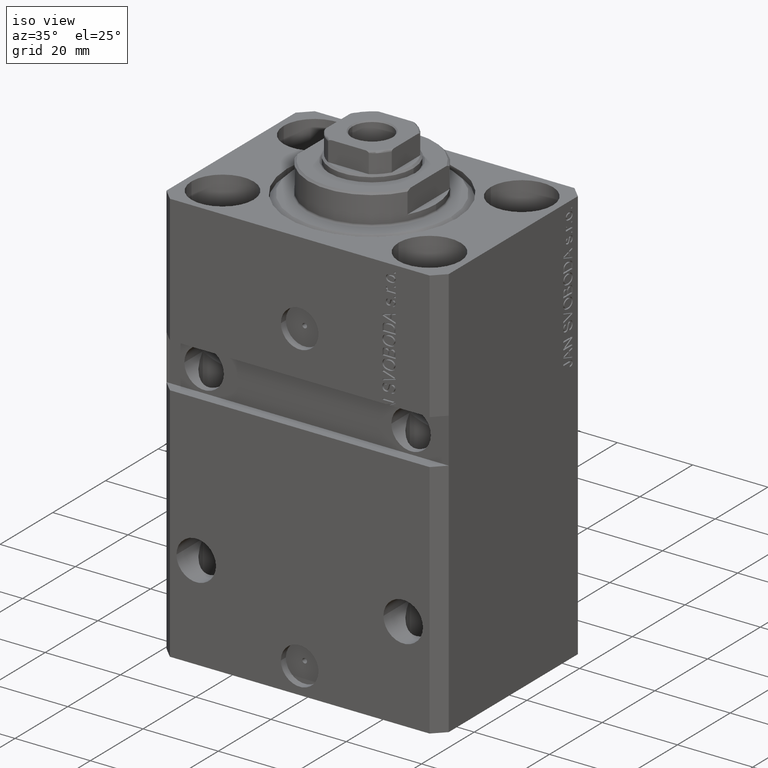
[diagram: clean part render]
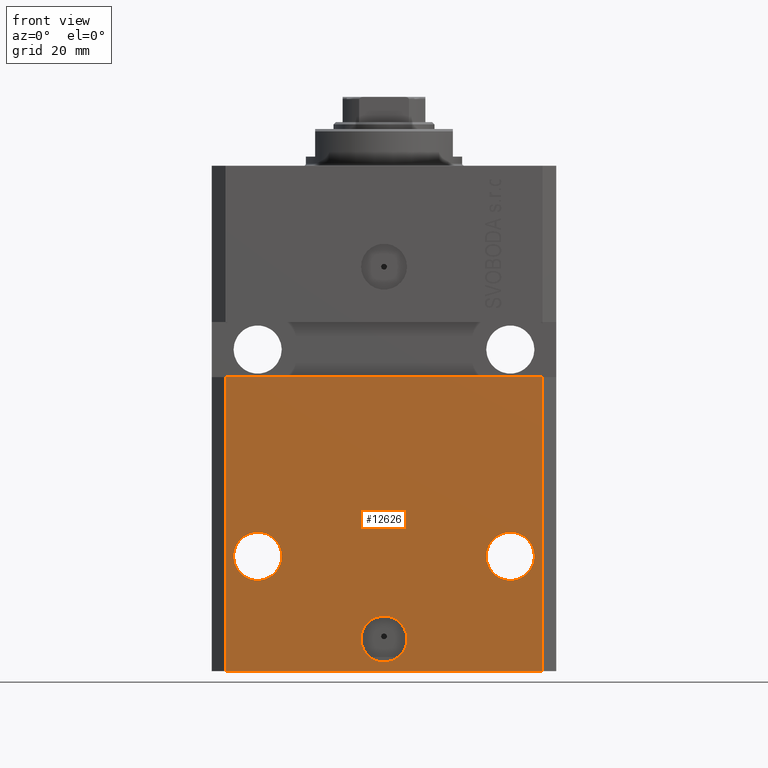
[diagram: tour spotlight — one face highlighted and labeled with its STEP entity id]
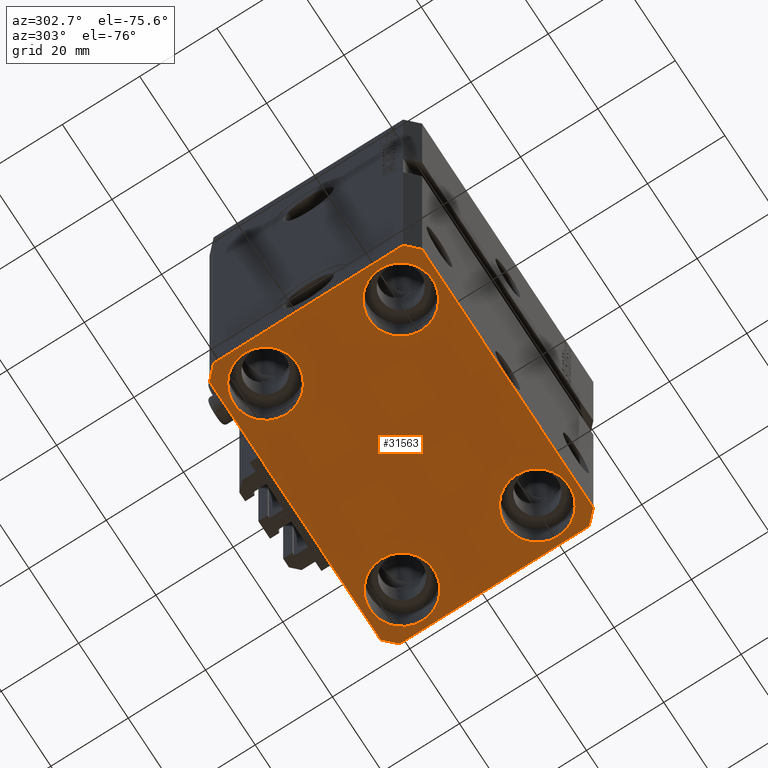
[diagram: tour spotlight — one face highlighted and labeled with its STEP entity id]
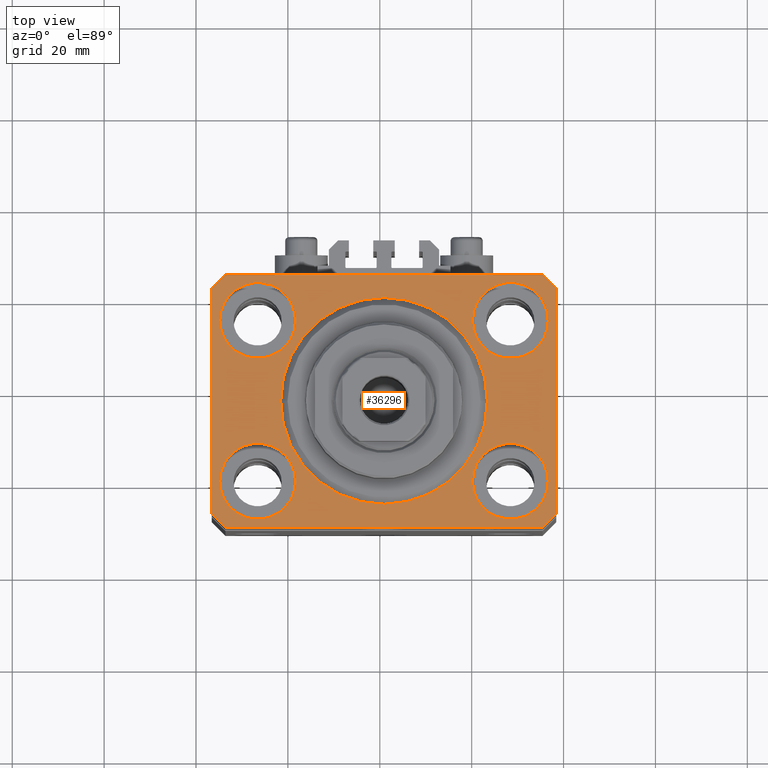
[diagram: tour spotlight — one face highlighted and labeled with its STEP entity id]
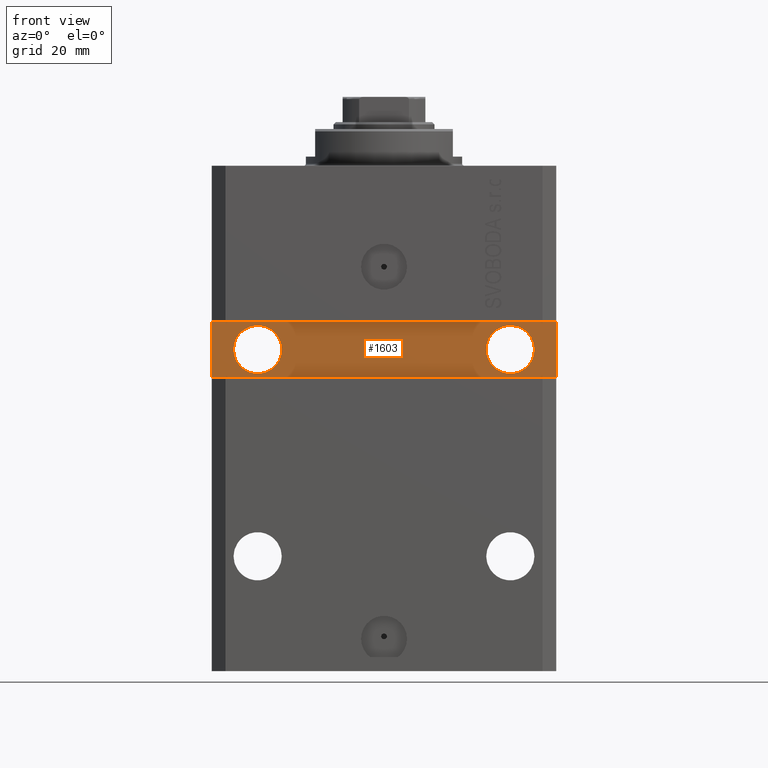
[diagram: tour spotlight — one face highlighted and labeled with its STEP entity id]
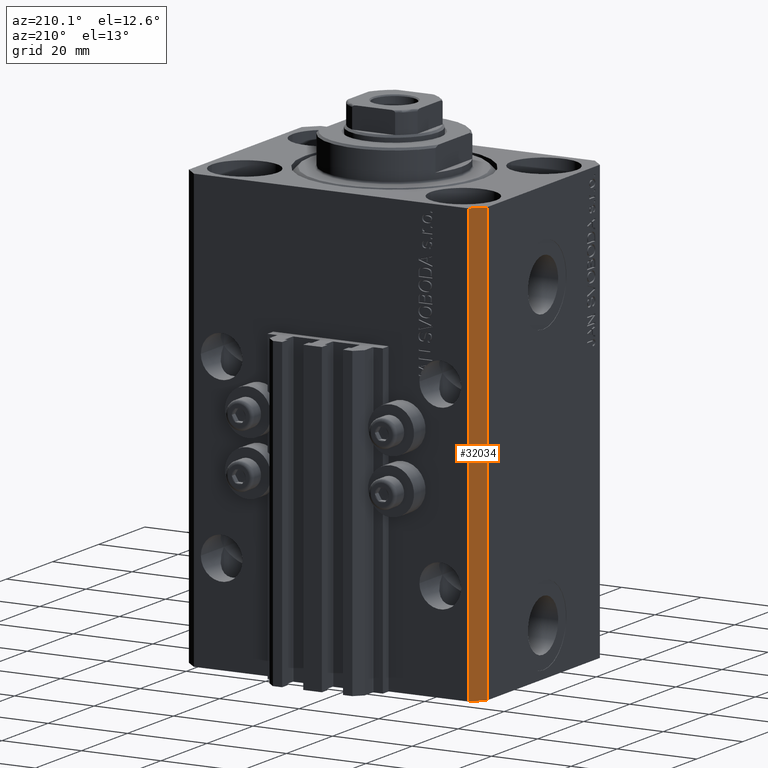
[diagram: tour spotlight — one face highlighted and labeled with its STEP entity id]
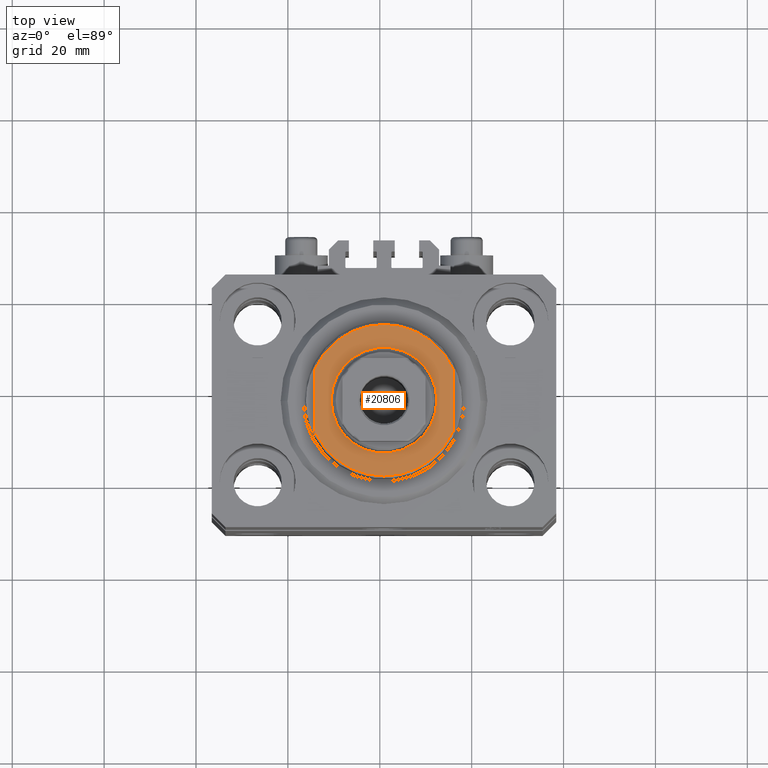
[diagram: tour spotlight — one face highlighted and labeled with its STEP entity id]
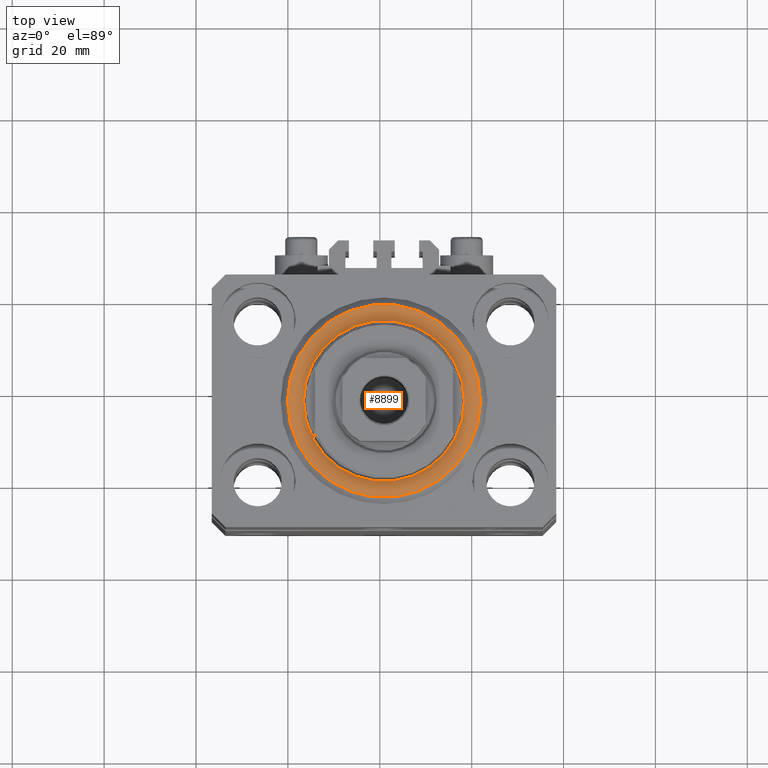
[diagram: tour spotlight — one face highlighted and labeled with its STEP entity id]
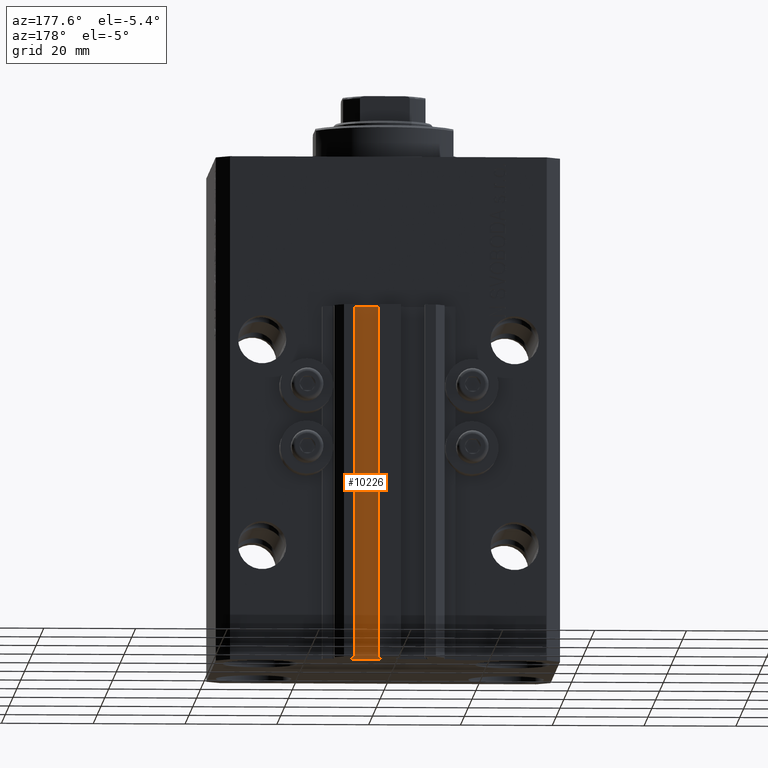
[diagram: tour spotlight — one face highlighted and labeled with its STEP entity id]
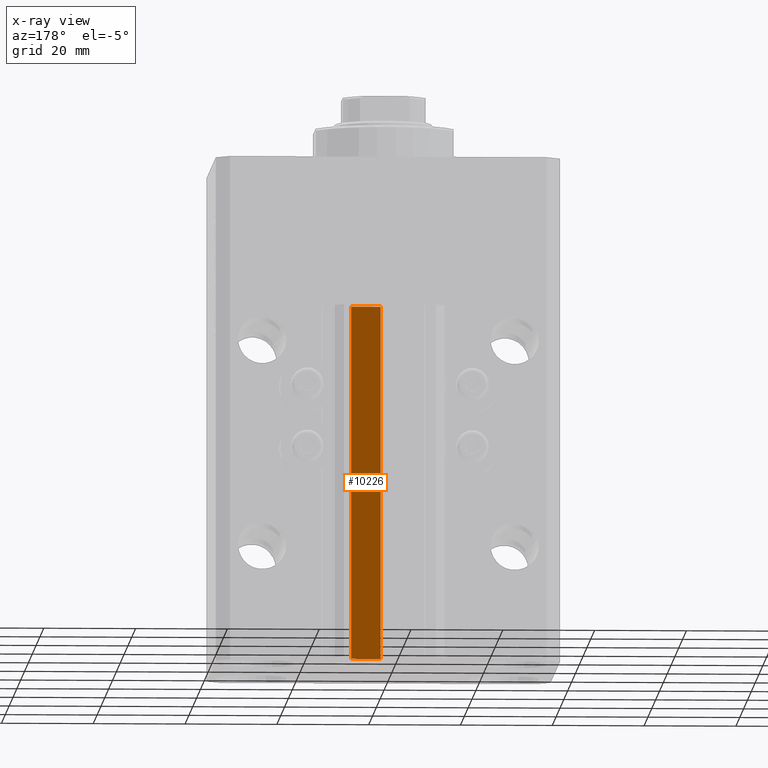
[diagram: x-ray of the same camera — body ghosted, this tour face saturated]
A machine part: a face-by-face anatomy tour. The part has 1084 B-rep faces; the first image is the clean iso view, then the 8 largest visible faces are spotlighted one at a time (largest first), each with its STEP entity span.

Face 1 — front view, entity #12626. In plain terms, the highlighted planar face has unit normal (0, -1, 0).
Definition (entity closure, byte-faithful):
#158 = VECTOR ( 'NONE', #4694, 1000.000000000000000 ) ;
#382 = DIRECTION ( 'NONE',  ( 0.000000000000000000, -0.000000000000000000, -1.000000000000000000 ) ) ;
#501 = ORIENTED_EDGE ( 'NONE', *, *, #44162, .F. ) ;
#529 = DIRECTION ( 'NONE',  ( 1.000000000000000000, 0.000000000000000000, 0.000000000000000000 ) ) ;
#603 = VERTEX_POINT ( 'NONE', #27097 ) ;
#1335 = DIRECTION ( 'NONE',  ( 1.000000000000000000, 0.000000000000000000, 0.000000000000000000 ) ) ;
#2938 = DIRECTION ( 'NONE',  ( 0.000000000000000000, 0.000000000000000000, 1.000000000000000000 ) ) ;
#3987 = LINE ( 'NONE', #22868, #158 ) ;
#4245 = ORIENTED_EDGE ( 'NONE', *, *, #21327, .F. ) ;
#4460 = EDGE_CURVE ( 'NONE', #14613, #32054, #47062, .T. ) ;
#4694 = DIRECTION ( 'NONE',  ( 1.000000000000000000, 9.251858538542972814E-17, -9.251858538542972814E-17 ) ) ;
#5792 = DIRECTION ( 'NONE',  ( 1.000000000000000000, 0.000000000000000000, 0.000000000000000000 ) ) ;
#5992 = DIRECTION ( 'NONE',  ( -1.000000000000000000, 0.000000000000000000, 0.000000000000000000 ) ) ;
#6988 = ORIENTED_EDGE ( 'NONE', *, *, #24050, .F. ) ;
#7158 = AXIS2_PLACEMENT_3D ( 'NONE', #36871, #36419, #7705 ) ;
#7705 = DIRECTION ( 'NONE',  ( 1.000000000000000000, 0.000000000000000000, 0.000000000000000000 ) ) ;
#8000 = CARTESIAN_POINT ( 'NONE',  ( -34.49999999999998579, -27.49999999999999645, -110.0000000000000000 ) ) ;
#9981 = LINE ( 'NONE', #43003, #34459 ) ;
#10138 = EDGE_CURVE ( 'NONE', #40624, #37892, #19222, .T. ) ;
#10198 = CARTESIAN_POINT ( 'NONE',  ( 22.25000000000002132, -27.49999999999999289, -84.99999999999998579 ) ) ;
#10224 = DIRECTION ( 'NONE',  ( 0.000000000000000000, 0.000000000000000000, 1.000000000000000000 ) ) ;
#10464 = EDGE_LOOP ( 'NONE', ( #501, #13793 ) ) ;
#11372 = AXIS2_PLACEMENT_3D ( 'NONE', #46433, #28930, #5992 ) ;
#11643 = FACE_BOUND ( 'NONE', #10464, .T. ) ;
#12415 = CIRCLE ( 'NONE', #42985, 5.000000000000006217 ) ;
#12523 = CIRCLE ( 'NONE', #7158, 5.249999999999994671 ) ;
#12626 = ADVANCED_FACE ( 'NONE', ( #37227, #11643, #41065, #19278 ), #33165, .T. ) ;
#12787 = CARTESIAN_POINT ( 'NONE',  ( -27.50000000000001421, -27.50000000000000000, -84.99999999999998579 ) ) ;
#13386 = EDGE_CURVE ( 'NONE', #18785, #46538, #35061, .T. ) ;
#13793 = ORIENTED_EDGE ( 'NONE', *, *, #31123, .F. ) ;
#14007 = ORIENTED_EDGE ( 'NONE', *, *, #24161, .T. ) ;
#14613 = VERTEX_POINT ( 'NONE', #26722 ) ;
#14943 = DIRECTION ( 'NONE',  ( 1.000000000000000000, 0.000000000000000000, 0.000000000000000000 ) ) ;
#18039 = DIRECTION ( 'NONE',  ( 1.176083712526788232E-16, -1.000000000000000000, 0.000000000000000000 ) ) ;
#18785 = VERTEX_POINT ( 'NONE', #34641 ) ;
#19045 = CARTESIAN_POINT ( 'NONE',  ( -34.49999999999998579, -27.49999999999999645, -110.0000000000000000 ) ) ;
#19222 = LINE ( 'NONE', #8000, #28081 ) ;
#19278 = FACE_OUTER_BOUND ( 'NONE', #39806, .T. ) ;
#20776 = AXIS2_PLACEMENT_3D ( 'NONE', #12787, #41978, #41503 ) ;
#21327 = EDGE_CURVE ( 'NONE', #40624, #30390, #9981, .T. ) ;
#21536 = CARTESIAN_POINT ( 'NONE',  ( -5.000000000000006217, -27.49999999999999645, -103.0000000000000000 ) ) ;
#22104 = ORIENTED_EDGE ( 'NONE', *, *, #4460, .F. ) ;
#22259 = ORIENTED_EDGE ( 'NONE', *, *, #42165, .F. ) ;
#22859 = DIRECTION ( 'NONE',  ( 0.000000000000000000, -1.000000000000000000, 0.000000000000000000 ) ) ;
#22868 = CARTESIAN_POINT ( 'NONE',  ( -37.50000000000000000, -27.50000000000000000, -46.00000000000000000 ) ) ;
#23150 = AXIS2_PLACEMENT_3D ( 'NONE', #43409, #18039, #529 ) ;
#23776 = VERTEX_POINT ( 'NONE', #10198 ) ;
#24050 = EDGE_CURVE ( 'NONE', #46538, #18785, #44445, .T. ) ;
#24161 = EDGE_CURVE ( 'NONE', #37892, #29768, #35245, .T. ) ;
#24750 = CARTESIAN_POINT ( 'NONE',  ( -22.25000000000002132, -27.50000000000000000, -84.99999999999998579 ) ) ;
#25748 = CARTESIAN_POINT ( 'NONE',  ( -34.49999999999998579, -27.50000000000000000, -46.00000000000000000 ) ) ;
#26722 = CARTESIAN_POINT ( 'NONE',  ( 5.000000000000006217, -27.49999999999999645, -103.0000000000000000 ) ) ;
#27097 = CARTESIAN_POINT ( 'NONE',  ( 32.75000000000000711, -27.49999999999999289, -84.99999999999998579 ) ) ;
#27973 = CARTESIAN_POINT ( 'NONE',  ( 34.49999999999999289, -27.49999999999999645, -110.0000000000000000 ) ) ;
#28081 = VECTOR ( 'NONE', #14943, 1000.000000000000000 ) ;
#28893 = CARTESIAN_POINT ( 'NONE',  ( -34.49999999999998579, -27.49999999999999645, -110.0000000000000000 ) ) ;
#28930 = DIRECTION ( 'NONE',  ( 1.176083712526788232E-16, -1.000000000000000000, 0.000000000000000000 ) ) ;
#29348 = DIRECTION ( 'NONE',  ( 1.176083712526788232E-16, -1.000000000000000000, 0.000000000000000000 ) ) ;
#29768 = VERTEX_POINT ( 'NONE', #38848 ) ;
#30390 = VERTEX_POINT ( 'NONE', #25748 ) ;
#31123 = EDGE_CURVE ( 'NONE', #23776, #603, #12523, .T. ) ;
#32054 = VERTEX_POINT ( 'NONE', #21536 ) ;
#33165 = PLANE ( 'NONE',  #33472 ) ;
#33472 = AXIS2_PLACEMENT_3D ( 'NONE', #19045, #22859, #382 ) ;
#34459 = VECTOR ( 'NONE', #10224, 1000.000000000000000 ) ;
#34539 = EDGE_LOOP ( 'NONE', ( #22104, #42292 ) ) ;
#34641 = CARTESIAN_POINT ( 'NONE',  ( -32.75000000000000711, -27.50000000000000000, -84.99999999999998579 ) ) ;
#35061 = CIRCLE ( 'NONE', #11372, 5.249999999999994671 ) ;
#35245 = LINE ( 'NONE', #42682, #46007 ) ;
#35666 = DIRECTION ( 'NONE',  ( 1.176083712526788232E-16, -1.000000000000000000, 0.000000000000000000 ) ) ;
#35855 = ORIENTED_EDGE ( 'NONE', *, *, #10138, .T. ) ;
#36419 = DIRECTION ( 'NONE',  ( 1.176083712526788232E-16, -1.000000000000000000, 0.000000000000000000 ) ) ;
#36871 = CARTESIAN_POINT ( 'NONE',  ( 27.50000000000001421, -27.49999999999999289, -84.99999999999998579 ) ) ;
#37227 = FACE_BOUND ( 'NONE', #34539, .T. ) ;
#37892 = VERTEX_POINT ( 'NONE', #27973 ) ;
#38848 = CARTESIAN_POINT ( 'NONE',  ( 34.49999999999999289, -27.49999999999999289, -46.00000000000000711 ) ) ;
#39012 = EDGE_LOOP ( 'NONE', ( #6988, #41111 ) ) ;
#39806 = EDGE_LOOP ( 'NONE', ( #22259, #4245, #35855, #14007 ) ) ;
#39973 = CIRCLE ( 'NONE', #23150, 5.249999999999994671 ) ;
#40624 = VERTEX_POINT ( 'NONE', #28893 ) ;
#41065 = FACE_BOUND ( 'NONE', #39012, .T. ) ;
#41073 = CARTESIAN_POINT ( 'NONE',  ( 0.000000000000000000, -27.49999999999999645, -103.0000000000000000 ) ) ;
#41111 = ORIENTED_EDGE ( 'NONE', *, *, #13386, .F. ) ;
#41503 = DIRECTION ( 'NONE',  ( -1.000000000000000000, 0.000000000000000000, 0.000000000000000000 ) ) ;
#41978 = DIRECTION ( 'NONE',  ( 1.176083712526788232E-16, -1.000000000000000000, 0.000000000000000000 ) ) ;
#42165 = EDGE_CURVE ( 'NONE', #30390, #29768, #3987, .T. ) ;
#42173 = CARTESIAN_POINT ( 'NONE',  ( 0.000000000000000000, -27.49999999999999645, -103.0000000000000000 ) ) ;
#42214 = EDGE_CURVE ( 'NONE', #32054, #14613, #12415, .T. ) ;
#42292 = ORIENTED_EDGE ( 'NONE', *, *, #42214, .F. ) ;
#42682 = CARTESIAN_POINT ( 'NONE',  ( 34.49999999999999289, -27.49999999999999645, -110.0000000000000000 ) ) ;
#42985 = AXIS2_PLACEMENT_3D ( 'NONE', #41073, #29348, #1335 ) ;
#43003 = CARTESIAN_POINT ( 'NONE',  ( -34.49999999999998579, -27.49999999999999645, -110.0000000000000000 ) ) ;
#43228 = AXIS2_PLACEMENT_3D ( 'NONE', #42173, #35666, #5792 ) ;
#43409 = CARTESIAN_POINT ( 'NONE',  ( 27.50000000000001421, -27.49999999999999289, -84.99999999999998579 ) ) ;
#44162 = EDGE_CURVE ( 'NONE', #603, #23776, #39973, .T. ) ;
#44445 = CIRCLE ( 'NONE', #20776, 5.249999999999994671 ) ;
#46007 = VECTOR ( 'NONE', #2938, 1000.000000000000000 ) ;
#46433 = CARTESIAN_POINT ( 'NONE',  ( -27.50000000000001421, -27.50000000000000000, -84.99999999999998579 ) ) ;
#46538 = VERTEX_POINT ( 'NONE', #24750 ) ;
#47062 = CIRCLE ( 'NONE', #43228, 5.000000000000006217 ) ;

Face 2 — auxiliary view, entity #31563. In plain terms, the highlighted planar face has unit normal (0, 0, 1).
Definition (entity closure, byte-faithful):
#70 = ORIENTED_EDGE ( 'NONE', *, *, #6767, .T. ) ;
#369 = VERTEX_POINT ( 'NONE', #30985 ) ;
#1162 = EDGE_CURVE ( 'NONE', #37358, #37851, #17820, .T. ) ;
#1176 = ORIENTED_EDGE ( 'NONE', *, *, #6708, .T. ) ;
#1227 = DIRECTION ( 'NONE',  ( 1.000000000000000000, 0.000000000000000000, 0.000000000000000000 ) ) ;
#1846 = VECTOR ( 'NONE', #10663, 1000.000000000000114 ) ;
#2437 = VERTEX_POINT ( 'NONE', #39682 ) ;
#2860 = DIRECTION ( 'NONE',  ( 0.000000000000000000, -1.000000000000000000, 0.000000000000000000 ) ) ;
#3123 = VECTOR ( 'NONE', #27321, 1000.000000000000000 ) ;
#3394 = AXIS2_PLACEMENT_3D ( 'NONE', #12017, #34000, #1227 ) ;
#3550 = EDGE_CURVE ( 'NONE', #2437, #9977, #22010, .T. ) ;
#4855 = EDGE_CURVE ( 'NONE', #26059, #20656, #17966, .T. ) ;
#5445 = CARTESIAN_POINT ( 'NONE',  ( 37.49999999999999289, -24.50000000000000000, -110.0000000000000000 ) ) ;
#5661 = DIRECTION ( 'NONE',  ( 1.000000000000000000, 0.000000000000000000, -0.000000000000000000 ) ) ;
#5975 = EDGE_CURVE ( 'NONE', #37851, #2437, #41804, .T. ) ;
#6501 = CARTESIAN_POINT ( 'NONE',  ( 35.74999999999999289, 17.50000000000001066, -110.0000000000000000 ) ) ;
#6606 = CIRCLE ( 'NONE', #42516, 8.250000000000000000 ) ;
#6708 = EDGE_CURVE ( 'NONE', #20656, #26059, #29478, .T. ) ;
#6767 = EDGE_CURVE ( 'NONE', #23388, #17220, #6606, .T. ) ;
#7219 = AXIS2_PLACEMENT_3D ( 'NONE', #25625, #7928, #32807 ) ;
#7763 = ORIENTED_EDGE ( 'NONE', *, *, #19316, .T. ) ;
#7923 = EDGE_CURVE ( 'NONE', #18420, #26434, #34102, .T. ) ;
#7928 = DIRECTION ( 'NONE',  ( -0.000000000000000000, -0.000000000000000000, 1.000000000000000000 ) ) ;
#7969 = AXIS2_PLACEMENT_3D ( 'NONE', #24529, #16659, #5661 ) ;
#8000 = CARTESIAN_POINT ( 'NONE',  ( -34.49999999999998579, -27.49999999999999645, -110.0000000000000000 ) ) ;
#8840 = ORIENTED_EDGE ( 'NONE', *, *, #10138, .F. ) ;
#8883 = AXIS2_PLACEMENT_3D ( 'NONE', #15835, #23241, #37847 ) ;
#9688 = CARTESIAN_POINT ( 'NONE',  ( 27.50000000000000355, -17.50000000000000000, -110.0000000000000000 ) ) ;
#9796 = DIRECTION ( 'NONE',  ( -0.000000000000000000, -0.000000000000000000, 1.000000000000000000 ) ) ;
#9954 = FACE_OUTER_BOUND ( 'NONE', #26709, .T. ) ;
#9977 = VERTEX_POINT ( 'NONE', #40886 ) ;
#10138 = EDGE_CURVE ( 'NONE', #40624, #37892, #19222, .T. ) ;
#10663 = DIRECTION ( 'NONE',  ( -0.7071067811865356934, 0.7071067811865594521, 0.000000000000000000 ) ) ;
#10723 = CARTESIAN_POINT ( 'NONE',  ( -27.50000000000000355, 17.50000000000000000, -110.0000000000000000 ) ) ;
#11114 = CARTESIAN_POINT ( 'NONE',  ( 35.75000000000000711, -17.50000000000000000, -110.0000000000000000 ) ) ;
#11331 = VERTEX_POINT ( 'NONE', #5445 ) ;
#11614 = CARTESIAN_POINT ( 'NONE',  ( -27.50000000000000355, 17.50000000000000000, -110.0000000000000000 ) ) ;
#12017 = CARTESIAN_POINT ( 'NONE',  ( -27.50000000000000355, -17.50000000000000000, -110.0000000000000000 ) ) ;
#12271 = ORIENTED_EDGE ( 'NONE', *, *, #7923, .T. ) ;
#12427 = ORIENTED_EDGE ( 'NONE', *, *, #21490, .F. ) ;
#12699 = CARTESIAN_POINT ( 'NONE',  ( 34.50000000000056843, 27.50000000000000000, -110.0000000000000000 ) ) ;
#14542 = CIRCLE ( 'NONE', #24448, 8.250000000000000000 ) ;
#14717 = ORIENTED_EDGE ( 'NONE', *, *, #33072, .T. ) ;
#14943 = DIRECTION ( 'NONE',  ( 1.000000000000000000, 0.000000000000000000, 0.000000000000000000 ) ) ;
#15501 = CIRCLE ( 'NONE', #7219, 8.250000000000000000 ) ;
#15712 = CARTESIAN_POINT ( 'NONE',  ( -19.25000000000000355, -17.50000000000000000, -110.0000000000000000 ) ) ;
#15823 = LINE ( 'NONE', #34220, #21674 ) ;
#15835 = CARTESIAN_POINT ( 'NONE',  ( 27.49999999999999645, 17.50000000000001066, -110.0000000000000000 ) ) ;
#16054 = DIRECTION ( 'NONE',  ( 0.7071067811865474617, 0.7071067811865474617, 0.000000000000000000 ) ) ;
#16659 = DIRECTION ( 'NONE',  ( 0.000000000000000000, 0.000000000000000000, 1.000000000000000000 ) ) ;
#16736 = DIRECTION ( 'NONE',  ( 1.000000000000000000, 0.000000000000000000, 0.000000000000000000 ) ) ;
#16966 = CARTESIAN_POINT ( 'NONE',  ( 37.49999999999999289, -24.50000000000000000, -110.0000000000000000 ) ) ;
#17149 = VECTOR ( 'NONE', #2860, 1000.000000000000000 ) ;
#17220 = VERTEX_POINT ( 'NONE', #11114 ) ;
#17321 = DIRECTION ( 'NONE',  ( 1.000000000000000000, 0.000000000000000000, 0.000000000000000000 ) ) ;
#17820 = LINE ( 'NONE', #32417, #1846 ) ;
#17966 = CIRCLE ( 'NONE', #46268, 8.249999999999992895 ) ;
#18420 = VERTEX_POINT ( 'NONE', #37823 ) ;
#19222 = LINE ( 'NONE', #8000, #28081 ) ;
#19316 = EDGE_CURVE ( 'NONE', #26434, #18420, #32866, .T. ) ;
#20656 = VERTEX_POINT ( 'NONE', #6501 ) ;
#20993 = ORIENTED_EDGE ( 'NONE', *, *, #46957, .T. ) ;
#20995 = EDGE_CURVE ( 'NONE', #11331, #37358, #42812, .T. ) ;
#21490 = EDGE_CURVE ( 'NONE', #369, #40624, #38109, .T. ) ;
#21674 = VECTOR ( 'NONE', #16054, 1000.000000000000114 ) ;
#21719 = DIRECTION ( 'NONE',  ( -0.000000000000000000, -0.000000000000000000, 1.000000000000000000 ) ) ;
#22010 = LINE ( 'NONE', #46934, #39353 ) ;
#22112 = EDGE_LOOP ( 'NONE', ( #12271, #7763 ) ) ;
#22234 = DIRECTION ( 'NONE',  ( -0.7071067811865471286, -0.7071067811865479058, 0.000000000000000000 ) ) ;
#22604 = DIRECTION ( 'NONE',  ( -0.000000000000000000, -0.000000000000000000, 1.000000000000000000 ) ) ;
#23241 = DIRECTION ( 'NONE',  ( -0.000000000000000000, -0.000000000000000000, 1.000000000000000000 ) ) ;
#23352 = VECTOR ( 'NONE', #34592, 1000.000000000000000 ) ;
#23388 = VERTEX_POINT ( 'NONE', #39259 ) ;
#23978 = CARTESIAN_POINT ( 'NONE',  ( -37.49999999999999289, -24.50000000000000000, -110.0000000000000000 ) ) ;
#24086 = ORIENTED_EDGE ( 'NONE', *, *, #4855, .T. ) ;
#24190 = DIRECTION ( 'NONE',  ( -0.000000000000000000, -0.000000000000000000, 1.000000000000000000 ) ) ;
#24258 = DIRECTION ( 'NONE',  ( -0.000000000000000000, -0.000000000000000000, 1.000000000000000000 ) ) ;
#24448 = AXIS2_PLACEMENT_3D ( 'NONE', #9688, #24258, #17321 ) ;
#24529 = CARTESIAN_POINT ( 'NONE',  ( 0.000000000000000000, 0.000000000000000000, -110.0000000000000000 ) ) ;
#24603 = DIRECTION ( 'NONE',  ( 1.076236605503979380E-14, 1.000000000000000000, 0.000000000000000000 ) ) ;
#25290 = DIRECTION ( 'NONE',  ( 1.000000000000000000, 0.000000000000000000, 0.000000000000000000 ) ) ;
#25625 = CARTESIAN_POINT ( 'NONE',  ( -27.50000000000000355, -17.50000000000000000, -110.0000000000000000 ) ) ;
#26059 = VERTEX_POINT ( 'NONE', #29547 ) ;
#26147 = EDGE_LOOP ( 'NONE', ( #70, #37990 ) ) ;
#26434 = VERTEX_POINT ( 'NONE', #46067 ) ;
#26709 = EDGE_LOOP ( 'NONE', ( #37438, #35423, #43591, #40224, #8840, #12427, #38289, #28979 ) ) ;
#27321 = DIRECTION ( 'NONE',  ( 0.7071067811865483499, -0.7071067811865466846, 0.000000000000000000 ) ) ;
#27725 = CARTESIAN_POINT ( 'NONE',  ( 27.49999999999999645, 17.50000000000001066, -110.0000000000000000 ) ) ;
#27973 = CARTESIAN_POINT ( 'NONE',  ( 34.49999999999999289, -27.49999999999999645, -110.0000000000000000 ) ) ;
#28005 = CARTESIAN_POINT ( 'NONE',  ( 27.50000000000000355, -17.50000000000000000, -110.0000000000000000 ) ) ;
#28081 = VECTOR ( 'NONE', #14943, 1000.000000000000000 ) ;
#28114 = FACE_BOUND ( 'NONE', #45348, .T. ) ;
#28893 = CARTESIAN_POINT ( 'NONE',  ( -34.49999999999998579, -27.49999999999999645, -110.0000000000000000 ) ) ;
#28979 = ORIENTED_EDGE ( 'NONE', *, *, #3550, .F. ) ;
#29081 = VECTOR ( 'NONE', #24603, 1000.000000000000000 ) ;
#29478 = CIRCLE ( 'NONE', #8883, 8.249999999999992895 ) ;
#29547 = CARTESIAN_POINT ( 'NONE',  ( 19.25000000000000000, 17.50000000000001066, -110.0000000000000000 ) ) ;
#29764 = DIRECTION ( 'NONE',  ( 1.000000000000000000, 0.000000000000000000, 0.000000000000000000 ) ) ;
#30425 = VERTEX_POINT ( 'NONE', #15712 ) ;
#30985 = CARTESIAN_POINT ( 'NONE',  ( -37.49999999999999289, -24.50000000000000000, -110.0000000000000000 ) ) ;
#31003 = FACE_BOUND ( 'NONE', #35243, .T. ) ;
#31274 = EDGE_CURVE ( 'NONE', #37892, #11331, #15823, .T. ) ;
#31327 = AXIS2_PLACEMENT_3D ( 'NONE', #11614, #22604, #29764 ) ;
#31563 = ADVANCED_FACE ( 'NONE', ( #31003, #34834, #28114, #42743, #9954 ), #45626, .F. ) ;
#32417 = CARTESIAN_POINT ( 'NONE',  ( 37.50000000000051870, 24.49999999999995381, -110.0000000000000000 ) ) ;
#32807 = DIRECTION ( 'NONE',  ( 1.000000000000000000, 0.000000000000000000, 0.000000000000000000 ) ) ;
#32866 = CIRCLE ( 'NONE', #31327, 8.250000000000000000 ) ;
#33072 = EDGE_CURVE ( 'NONE', #33327, #30425, #40097, .T. ) ;
#33327 = VERTEX_POINT ( 'NONE', #39024 ) ;
#34000 = DIRECTION ( 'NONE',  ( -0.000000000000000000, -0.000000000000000000, 1.000000000000000000 ) ) ;
#34102 = CIRCLE ( 'NONE', #40230, 8.250000000000000000 ) ;
#34220 = CARTESIAN_POINT ( 'NONE',  ( 34.49999999999999289, -27.49999999999999645, -110.0000000000000000 ) ) ;
#34592 = DIRECTION ( 'NONE',  ( -1.000000000000000000, 0.000000000000000000, 0.000000000000000000 ) ) ;
#34834 = FACE_BOUND ( 'NONE', #26147, .T. ) ;
#35243 = EDGE_LOOP ( 'NONE', ( #14717, #20993 ) ) ;
#35423 = ORIENTED_EDGE ( 'NONE', *, *, #1162, .F. ) ;
#35426 = DIRECTION ( 'NONE',  ( 1.000000000000000000, 0.000000000000000000, 0.000000000000000000 ) ) ;
#35977 = CARTESIAN_POINT ( 'NONE',  ( 37.50000000000051870, 24.49999999999995381, -110.0000000000000000 ) ) ;
#36431 = EDGE_CURVE ( 'NONE', #17220, #23388, #14542, .T. ) ;
#37358 = VERTEX_POINT ( 'NONE', #35977 ) ;
#37438 = ORIENTED_EDGE ( 'NONE', *, *, #5975, .F. ) ;
#37823 = CARTESIAN_POINT ( 'NONE',  ( -35.75000000000000711, 17.50000000000000000, -110.0000000000000000 ) ) ;
#37847 = DIRECTION ( 'NONE',  ( 1.000000000000000000, 0.000000000000000000, 0.000000000000000000 ) ) ;
#37851 = VERTEX_POINT ( 'NONE', #12699 ) ;
#37892 = VERTEX_POINT ( 'NONE', #27973 ) ;
#37990 = ORIENTED_EDGE ( 'NONE', *, *, #36431, .T. ) ;
#38109 = LINE ( 'NONE', #23978, #3123 ) ;
#38289 = ORIENTED_EDGE ( 'NONE', *, *, #47140, .F. ) ;
#38778 = CARTESIAN_POINT ( 'NONE',  ( -37.49999999999999289, 24.50000000000000000, -110.0000000000000000 ) ) ;
#38917 = CARTESIAN_POINT ( 'NONE',  ( 34.50000000000056843, 27.50000000000000000, -110.0000000000000000 ) ) ;
#39005 = LINE ( 'NONE', #38778, #17149 ) ;
#39024 = CARTESIAN_POINT ( 'NONE',  ( -35.75000000000000711, -17.50000000000000000, -110.0000000000000000 ) ) ;
#39259 = CARTESIAN_POINT ( 'NONE',  ( 19.25000000000000000, -17.50000000000000000, -110.0000000000000000 ) ) ;
#39353 = VECTOR ( 'NONE', #22234, 1000.000000000000000 ) ;
#39682 = CARTESIAN_POINT ( 'NONE',  ( -34.49999999999999289, 27.50000000000000000, -110.0000000000000000 ) ) ;
#40097 = CIRCLE ( 'NONE', #3394, 8.250000000000000000 ) ;
#40224 = ORIENTED_EDGE ( 'NONE', *, *, #31274, .F. ) ;
#40230 = AXIS2_PLACEMENT_3D ( 'NONE', #10723, #21719, #25290 ) ;
#40624 = VERTEX_POINT ( 'NONE', #28893 ) ;
#40886 = CARTESIAN_POINT ( 'NONE',  ( -37.49999999999999289, 24.50000000000000000, -110.0000000000000000 ) ) ;
#41804 = LINE ( 'NONE', #38917, #23352 ) ;
#42516 = AXIS2_PLACEMENT_3D ( 'NONE', #28005, #24190, #35426 ) ;
#42743 = FACE_BOUND ( 'NONE', #22112, .T. ) ;
#42812 = LINE ( 'NONE', #16966, #29081 ) ;
#43591 = ORIENTED_EDGE ( 'NONE', *, *, #20995, .F. ) ;
#45348 = EDGE_LOOP ( 'NONE', ( #24086, #1176 ) ) ;
#45626 = PLANE ( 'NONE',  #7969 ) ;
#46067 = CARTESIAN_POINT ( 'NONE',  ( -19.25000000000000355, 17.50000000000000000, -110.0000000000000000 ) ) ;
#46268 = AXIS2_PLACEMENT_3D ( 'NONE', #27725, #9796, #16736 ) ;
#46934 = CARTESIAN_POINT ( 'NONE',  ( -34.49999999999999289, 27.50000000000000000, -110.0000000000000000 ) ) ;
#46957 = EDGE_CURVE ( 'NONE', #30425, #33327, #15501, .T. ) ;
#47140 = EDGE_CURVE ( 'NONE', #9977, #369, #39005, .T. ) ;

Face 3 — top view, entity #36296. In plain terms, the highlighted planar face has unit normal (0, 0, 1).
Definition (entity closure, byte-faithful):
#28 = CARTESIAN_POINT ( 'NONE',  ( 34.50000000000056843, 27.50000000000000000, 0.000000000000000000 ) ) ;
#126 = FACE_BOUND ( 'NONE', #10870, .T. ) ;
#148 = CARTESIAN_POINT ( 'NONE',  ( -37.49999999999999289, 24.50000000000000000, 0.000000000000000000 ) ) ;
#931 = EDGE_CURVE ( 'NONE', #27735, #17311, #3357, .T. ) ;
#960 = ORIENTED_EDGE ( 'NONE', *, *, #11618, .F. ) ;
#1533 = DIRECTION ( 'NONE',  ( -0.7071067811865356934, 0.7071067811865594521, 0.000000000000000000 ) ) ;
#1693 = DIRECTION ( 'NONE',  ( 1.000000000000000000, 0.000000000000000000, 0.000000000000000000 ) ) ;
#1975 = VERTEX_POINT ( 'NONE', #20489 ) ;
#2302 = VECTOR ( 'NONE', #22545, 1000.000000000000114 ) ;
#2694 = CARTESIAN_POINT ( 'NONE',  ( 22.50000000000000355, 0.000000000000000000, 0.000000000000000000 ) ) ;
#3357 = CIRCLE ( 'NONE', #45401, 8.250000000000000000 ) ;
#3817 = EDGE_CURVE ( 'NONE', #14530, #47329, #14280, .T. ) ;
#3936 = ORIENTED_EDGE ( 'NONE', *, *, #3817, .T. ) ;
#3982 = DIRECTION ( 'NONE',  ( 0.000000000000000000, 0.000000000000000000, 1.000000000000000000 ) ) ;
#5161 = CARTESIAN_POINT ( 'NONE',  ( -37.49999999999999289, 24.50000000000000000, 0.000000000000000000 ) ) ;
#5512 = VECTOR ( 'NONE', #7121, 1000.000000000000000 ) ;
#5982 = VERTEX_POINT ( 'NONE', #37967 ) ;
#6087 = DIRECTION ( 'NONE',  ( 1.000000000000000000, 0.000000000000000000, 0.000000000000000000 ) ) ;
#6424 = ORIENTED_EDGE ( 'NONE', *, *, #32931, .F. ) ;
#6727 = DIRECTION ( 'NONE',  ( 0.7071067811865483499, -0.7071067811865466846, 0.000000000000000000 ) ) ;
#6870 = CARTESIAN_POINT ( 'NONE',  ( -34.49999999999999289, 27.50000000000000000, 0.000000000000000000 ) ) ;
#7121 = DIRECTION ( 'NONE',  ( 0.000000000000000000, -1.000000000000000000, 0.000000000000000000 ) ) ;
#7157 = DIRECTION ( 'NONE',  ( 1.000000000000000000, 0.000000000000000000, 0.000000000000000000 ) ) ;
#7791 = FACE_BOUND ( 'NONE', #22856, .T. ) ;
#8067 = CARTESIAN_POINT ( 'NONE',  ( 19.25000000000000000, 17.50000000000001066, 0.000000000000000000 ) ) ;
#8249 = CARTESIAN_POINT ( 'NONE',  ( 34.50000000000056843, 27.50000000000000000, 0.000000000000000000 ) ) ;
#8485 = LINE ( 'NONE', #8249, #19232 ) ;
#8970 = ORIENTED_EDGE ( 'NONE', *, *, #11744, .F. ) ;
#8978 = VERTEX_POINT ( 'NONE', #18566 ) ;
#9218 = DIRECTION ( 'NONE',  ( 1.000000000000000000, 0.000000000000000000, 0.000000000000000000 ) ) ;
#9295 = VERTEX_POINT ( 'NONE', #38885 ) ;
#9790 = ORIENTED_EDGE ( 'NONE', *, *, #931, .F. ) ;
#9814 = ORIENTED_EDGE ( 'NONE', *, *, #43379, .F. ) ;
#10266 = AXIS2_PLACEMENT_3D ( 'NONE', #24690, #21341, #39067 ) ;
#10283 = VERTEX_POINT ( 'NONE', #2694 ) ;
#10870 = EDGE_LOOP ( 'NONE', ( #960, #9790 ) ) ;
#11166 = DIRECTION ( 'NONE',  ( 0.000000000000000000, 0.000000000000000000, 1.000000000000000000 ) ) ;
#11387 = FACE_BOUND ( 'NONE', #11793, .T. ) ;
#11453 = AXIS2_PLACEMENT_3D ( 'NONE', #43941, #11166, #25723 ) ;
#11618 = EDGE_CURVE ( 'NONE', #17311, #27735, #35740, .T. ) ;
#11744 = EDGE_CURVE ( 'NONE', #46038, #23622, #38866, .T. ) ;
#11793 = EDGE_LOOP ( 'NONE', ( #24976, #25785 ) ) ;
#12454 = ORIENTED_EDGE ( 'NONE', *, *, #23050, .F. ) ;
#12716 = VERTEX_POINT ( 'NONE', #5161 ) ;
#12786 = CARTESIAN_POINT ( 'NONE',  ( 0.000000000000000000, 0.000000000000000000, 0.000000000000000000 ) ) ;
#12938 = EDGE_CURVE ( 'NONE', #1975, #5982, #24361, .T. ) ;
#13349 = DIRECTION ( 'NONE',  ( -0.7071067811865471286, -0.7071067811865479058, 0.000000000000000000 ) ) ;
#13519 = DIRECTION ( 'NONE',  ( 1.000000000000000000, 0.000000000000000000, 0.000000000000000000 ) ) ;
#13522 = CARTESIAN_POINT ( 'NONE',  ( -37.49999999999999289, -24.50000000000000000, 0.000000000000000000 ) ) ;
#13747 = CARTESIAN_POINT ( 'NONE',  ( 27.49999999999999645, 17.50000000000001066, 0.000000000000000000 ) ) ;
#14097 = AXIS2_PLACEMENT_3D ( 'NONE', #18241, #43388, #21595 ) ;
#14280 = LINE ( 'NONE', #25021, #19471 ) ;
#14337 = DIRECTION ( 'NONE',  ( 0.000000000000000000, 0.000000000000000000, 1.000000000000000000 ) ) ;
#14375 = VECTOR ( 'NONE', #13349, 1000.000000000000000 ) ;
#14530 = VERTEX_POINT ( 'NONE', #15969 ) ;
#14649 = EDGE_CURVE ( 'NONE', #8978, #12716, #20510, .T. ) ;
#15969 = CARTESIAN_POINT ( 'NONE',  ( 37.49999999999999289, -24.50000000000000000, 0.000000000000000000 ) ) ;
#16614 = EDGE_CURVE ( 'NONE', #10283, #27509, #27404, .T. ) ;
#16839 = DIRECTION ( 'NONE',  ( 0.000000000000000000, 0.000000000000000000, 1.000000000000000000 ) ) ;
#17005 = DIRECTION ( 'NONE',  ( 0.000000000000000000, 0.000000000000000000, 1.000000000000000000 ) ) ;
#17039 = CARTESIAN_POINT ( 'NONE',  ( 35.75000000000000711, -17.50000000000000000, 0.000000000000000000 ) ) ;
#17311 = VERTEX_POINT ( 'NONE', #17039 ) ;
#17318 = CARTESIAN_POINT ( 'NONE',  ( -27.50000000000000355, -17.50000000000000000, 0.000000000000000000 ) ) ;
#17970 = CARTESIAN_POINT ( 'NONE',  ( -37.49999999999999289, -24.50000000000000000, 0.000000000000000000 ) ) ;
#18090 = EDGE_LOOP ( 'NONE', ( #6424, #37743 ) ) ;
#18241 = CARTESIAN_POINT ( 'NONE',  ( -27.50000000000000355, 17.50000000000000000, 0.000000000000000000 ) ) ;
#18397 = VERTEX_POINT ( 'NONE', #28 ) ;
#18566 = CARTESIAN_POINT ( 'NONE',  ( -34.49999999999999289, 27.50000000000000000, 0.000000000000000000 ) ) ;
#18577 = DIRECTION ( 'NONE',  ( 1.000000000000000000, 0.000000000000000000, 0.000000000000000000 ) ) ;
#19232 = VECTOR ( 'NONE', #41037, 1000.000000000000000 ) ;
#19406 = ORIENTED_EDGE ( 'NONE', *, *, #19820, .T. ) ;
#19437 = EDGE_CURVE ( 'NONE', #47329, #18397, #23311, .T. ) ;
#19471 = VECTOR ( 'NONE', #30832, 1000.000000000000000 ) ;
#19820 = EDGE_CURVE ( 'NONE', #45394, #30139, #46231, .T. ) ;
#20093 = CIRCLE ( 'NONE', #36111, 8.250000000000000000 ) ;
#20489 = CARTESIAN_POINT ( 'NONE',  ( -35.75000000000000711, 17.50000000000000000, 0.000000000000000000 ) ) ;
#20510 = LINE ( 'NONE', #6870, #14375 ) ;
#20739 = ORIENTED_EDGE ( 'NONE', *, *, #19437, .T. ) ;
#21341 = DIRECTION ( 'NONE',  ( 0.000000000000000000, 0.000000000000000000, 1.000000000000000000 ) ) ;
#21498 = CARTESIAN_POINT ( 'NONE',  ( 0.000000000000000000, 0.000000000000000000, 0.000000000000000000 ) ) ;
#21595 = DIRECTION ( 'NONE',  ( 1.000000000000000000, 0.000000000000000000, 0.000000000000000000 ) ) ;
#21988 = ORIENTED_EDGE ( 'NONE', *, *, #24287, .T. ) ;
#22171 = VECTOR ( 'NONE', #1533, 1000.000000000000114 ) ;
#22299 = CARTESIAN_POINT ( 'NONE',  ( 34.49999999999999289, -27.49999999999999645, 0.000000000000000000 ) ) ;
#22545 = DIRECTION ( 'NONE',  ( 0.7071067811865474617, 0.7071067811865474617, 0.000000000000000000 ) ) ;
#22856 = EDGE_LOOP ( 'NONE', ( #30558, #9814 ) ) ;
#23050 = EDGE_CURVE ( 'NONE', #23622, #46038, #26048, .T. ) ;
#23311 = LINE ( 'NONE', #31666, #22171 ) ;
#23622 = VERTEX_POINT ( 'NONE', #8067 ) ;
#23903 = AXIS2_PLACEMENT_3D ( 'NONE', #12786, #16839, #38630 ) ;
#24162 = ORIENTED_EDGE ( 'NONE', *, *, #36541, .T. ) ;
#24179 = CARTESIAN_POINT ( 'NONE',  ( 27.49999999999999645, 17.50000000000001066, 0.000000000000000000 ) ) ;
#24287 = EDGE_CURVE ( 'NONE', #30139, #40018, #27065, .T. ) ;
#24361 = CIRCLE ( 'NONE', #36598, 8.250000000000000000 ) ;
#24690 = CARTESIAN_POINT ( 'NONE',  ( -27.50000000000000355, -17.50000000000000000, 0.000000000000000000 ) ) ;
#24976 = ORIENTED_EDGE ( 'NONE', *, *, #46448, .F. ) ;
#25021 = CARTESIAN_POINT ( 'NONE',  ( 37.49999999999999289, -24.50000000000000000, 0.000000000000000000 ) ) ;
#25550 = CIRCLE ( 'NONE', #14097, 8.250000000000000000 ) ;
#25701 = EDGE_CURVE ( 'NONE', #31027, #9295, #20093, .T. ) ;
#25723 = DIRECTION ( 'NONE',  ( 1.000000000000000000, 0.000000000000000000, -0.000000000000000000 ) ) ;
#25785 = ORIENTED_EDGE ( 'NONE', *, *, #25701, .F. ) ;
#25971 = LINE ( 'NONE', #148, #5512 ) ;
#26048 = CIRCLE ( 'NONE', #32958, 8.249999999999992895 ) ;
#27065 = LINE ( 'NONE', #34004, #41412 ) ;
#27404 = CIRCLE ( 'NONE', #33500, 22.50000000000000355 ) ;
#27509 = VERTEX_POINT ( 'NONE', #32921 ) ;
#27735 = VERTEX_POINT ( 'NONE', #34325 ) ;
#28317 = DIRECTION ( 'NONE',  ( 0.000000000000000000, 0.000000000000000000, 1.000000000000000000 ) ) ;
#28403 = EDGE_CURVE ( 'NONE', #12716, #45394, #25971, .T. ) ;
#29087 = FACE_BOUND ( 'NONE', #18090, .T. ) ;
#29320 = PLANE ( 'NONE',  #11453 ) ;
#29480 = LINE ( 'NONE', #22299, #2302 ) ;
#29612 = AXIS2_PLACEMENT_3D ( 'NONE', #41532, #46072, #9218 ) ;
#29772 = FACE_BOUND ( 'NONE', #35072, .T. ) ;
#29919 = CARTESIAN_POINT ( 'NONE',  ( -35.75000000000000711, -17.50000000000000000, 0.000000000000000000 ) ) ;
#30139 = VERTEX_POINT ( 'NONE', #33450 ) ;
#30558 = ORIENTED_EDGE ( 'NONE', *, *, #16614, .F. ) ;
#30832 = DIRECTION ( 'NONE',  ( 1.076236605503979380E-14, 1.000000000000000000, 0.000000000000000000 ) ) ;
#31009 = CARTESIAN_POINT ( 'NONE',  ( 34.49999999999999289, -27.49999999999999645, 0.000000000000000000 ) ) ;
#31027 = VERTEX_POINT ( 'NONE', #29919 ) ;
#31430 = ORIENTED_EDGE ( 'NONE', *, *, #28403, .T. ) ;
#31666 = CARTESIAN_POINT ( 'NONE',  ( 37.50000000000051870, 24.49999999999995381, 0.000000000000000000 ) ) ;
#31948 = AXIS2_PLACEMENT_3D ( 'NONE', #13747, #28317, #13519 ) ;
#32921 = CARTESIAN_POINT ( 'NONE',  ( -22.50000000000000355, 2.755455298081545172E-15, 0.000000000000000000 ) ) ;
#32931 = EDGE_CURVE ( 'NONE', #5982, #1975, #25550, .T. ) ;
#32958 = AXIS2_PLACEMENT_3D ( 'NONE', #24179, #17005, #1693 ) ;
#33151 = ORIENTED_EDGE ( 'NONE', *, *, #40965, .T. ) ;
#33450 = CARTESIAN_POINT ( 'NONE',  ( -34.49999999999998579, -27.49999999999999645, 0.000000000000000000 ) ) ;
#33500 = AXIS2_PLACEMENT_3D ( 'NONE', #21498, #14337, #7157 ) ;
#34004 = CARTESIAN_POINT ( 'NONE',  ( -34.49999999999998579, -27.49999999999999645, 0.000000000000000000 ) ) ;
#34325 = CARTESIAN_POINT ( 'NONE',  ( 19.25000000000000000, -17.50000000000000000, 0.000000000000000000 ) ) ;
#34368 = ORIENTED_EDGE ( 'NONE', *, *, #14649, .T. ) ;
#35072 = EDGE_LOOP ( 'NONE', ( #8970, #12454 ) ) ;
#35740 = CIRCLE ( 'NONE', #29612, 8.250000000000000000 ) ;
#36111 = AXIS2_PLACEMENT_3D ( 'NONE', #17318, #46059, #6087 ) ;
#36296 = ADVANCED_FACE ( 'NONE', ( #11387, #126, #29772, #29087, #7791, #43707 ), #29320, .T. ) ;
#36541 = EDGE_CURVE ( 'NONE', #40018, #14530, #29480, .T. ) ;
#36598 = AXIS2_PLACEMENT_3D ( 'NONE', #44596, #43902, #36927 ) ;
#36752 = CARTESIAN_POINT ( 'NONE',  ( 35.74999999999999289, 17.50000000000001066, 0.000000000000000000 ) ) ;
#36927 = DIRECTION ( 'NONE',  ( 1.000000000000000000, 0.000000000000000000, 0.000000000000000000 ) ) ;
#37444 = VECTOR ( 'NONE', #6727, 1000.000000000000000 ) ;
#37743 = ORIENTED_EDGE ( 'NONE', *, *, #12938, .F. ) ;
#37967 = CARTESIAN_POINT ( 'NONE',  ( -19.25000000000000355, 17.50000000000000000, 0.000000000000000000 ) ) ;
#38630 = DIRECTION ( 'NONE',  ( 1.000000000000000000, 0.000000000000000000, 0.000000000000000000 ) ) ;
#38866 = CIRCLE ( 'NONE', #31948, 8.249999999999992895 ) ;
#38885 = CARTESIAN_POINT ( 'NONE',  ( -19.25000000000000355, -17.50000000000000000, 0.000000000000000000 ) ) ;
#39067 = DIRECTION ( 'NONE',  ( 1.000000000000000000, 0.000000000000000000, 0.000000000000000000 ) ) ;
#40018 = VERTEX_POINT ( 'NONE', #31009 ) ;
#40047 = CIRCLE ( 'NONE', #10266, 8.250000000000000000 ) ;
#40413 = EDGE_LOOP ( 'NONE', ( #33151, #34368, #31430, #19406, #21988, #24162, #3936, #20739 ) ) ;
#40586 = CARTESIAN_POINT ( 'NONE',  ( 27.50000000000000355, -17.50000000000000000, 0.000000000000000000 ) ) ;
#40965 = EDGE_CURVE ( 'NONE', #18397, #8978, #8485, .T. ) ;
#41037 = DIRECTION ( 'NONE',  ( -1.000000000000000000, 0.000000000000000000, 0.000000000000000000 ) ) ;
#41412 = VECTOR ( 'NONE', #41686, 1000.000000000000000 ) ;
#41532 = CARTESIAN_POINT ( 'NONE',  ( 27.50000000000000355, -17.50000000000000000, 0.000000000000000000 ) ) ;
#41686 = DIRECTION ( 'NONE',  ( 1.000000000000000000, 0.000000000000000000, 0.000000000000000000 ) ) ;
#43379 = EDGE_CURVE ( 'NONE', #27509, #10283, #44543, .T. ) ;
#43388 = DIRECTION ( 'NONE',  ( 0.000000000000000000, 0.000000000000000000, 1.000000000000000000 ) ) ;
#43707 = FACE_OUTER_BOUND ( 'NONE', #40413, .T. ) ;
#43902 = DIRECTION ( 'NONE',  ( 0.000000000000000000, 0.000000000000000000, 1.000000000000000000 ) ) ;
#43941 = CARTESIAN_POINT ( 'NONE',  ( 0.000000000000000000, 0.000000000000000000, 0.000000000000000000 ) ) ;
#44543 = CIRCLE ( 'NONE', #23903, 22.50000000000000355 ) ;
#44596 = CARTESIAN_POINT ( 'NONE',  ( -27.50000000000000355, 17.50000000000000000, 0.000000000000000000 ) ) ;
#45394 = VERTEX_POINT ( 'NONE', #13522 ) ;
#45401 = AXIS2_PLACEMENT_3D ( 'NONE', #40586, #3982, #18577 ) ;
#45674 = CARTESIAN_POINT ( 'NONE',  ( 37.50000000000051870, 24.49999999999995381, 0.000000000000000000 ) ) ;
#46038 = VERTEX_POINT ( 'NONE', #36752 ) ;
#46059 = DIRECTION ( 'NONE',  ( 0.000000000000000000, 0.000000000000000000, 1.000000000000000000 ) ) ;
#46072 = DIRECTION ( 'NONE',  ( 0.000000000000000000, 0.000000000000000000, 1.000000000000000000 ) ) ;
#46231 = LINE ( 'NONE', #17970, #37444 ) ;
#46448 = EDGE_CURVE ( 'NONE', #9295, #31027, #40047, .T. ) ;
#47329 = VERTEX_POINT ( 'NONE', #45674 ) ;

Face 4 — front view, entity #1603. In plain terms, the highlighted planar face has unit normal (0, -1, 0).
Definition (entity closure, byte-faithful):
#973 = DIRECTION ( 'NONE',  ( 9.251858538542974046E-17, -1.000000000000000000, 0.000000000000000000 ) ) ;
#1426 = DIRECTION ( 'NONE',  ( 1.101411730780568590E-16, -1.000000000000000000, 0.000000000000000000 ) ) ;
#1474 = CARTESIAN_POINT ( 'NONE',  ( -22.24999999999999645, -24.50000000000000000, -40.00000000000000711 ) ) ;
#1603 = ADVANCED_FACE ( 'NONE', ( #33747, #41423, #4568 ), #8638, .T. ) ;
#2018 = DIRECTION ( 'NONE',  ( 1.000000000000000000, 9.251858538542972814E-17, -9.251858538542972814E-17 ) ) ;
#2428 = CARTESIAN_POINT ( 'NONE',  ( 27.50000000000000711, -24.49999999999999289, -40.00000000000000000 ) ) ;
#3586 = LINE ( 'NONE', #14826, #27719 ) ;
#4382 = VERTEX_POINT ( 'NONE', #1474 ) ;
#4568 = FACE_OUTER_BOUND ( 'NONE', #8742, .T. ) ;
#4620 = CIRCLE ( 'NONE', #42855, 5.249999999999997335 ) ;
#5052 = CARTESIAN_POINT ( 'NONE',  ( 2.191435984341281325E-15, -24.49999999999999645, 0.000000000000000000 ) ) ;
#5267 = CARTESIAN_POINT ( 'NONE',  ( -37.50000000000000000, -24.50000000000000000, -46.00000000000000000 ) ) ;
#5560 = DIRECTION ( 'NONE',  ( 1.171720209325604191E-16, -1.000000000000000000, 0.000000000000000000 ) ) ;
#5846 = CARTESIAN_POINT ( 'NONE',  ( -32.74999999999999289, -24.50000000000000000, -40.00000000000000711 ) ) ;
#6353 = EDGE_CURVE ( 'NONE', #15400, #38138, #16843, .T. ) ;
#8638 = PLANE ( 'NONE',  #38507 ) ;
#8656 = CIRCLE ( 'NONE', #15524, 5.249999999999994671 ) ;
#8742 = EDGE_LOOP ( 'NONE', ( #42152, #10318, #34278, #30830 ) ) ;
#10175 = CARTESIAN_POINT ( 'NONE',  ( 37.49999999999999289, -24.49999999999999289, -33.99999999999997868 ) ) ;
#10318 = ORIENTED_EDGE ( 'NONE', *, *, #35563, .T. ) ;
#10954 = CIRCLE ( 'NONE', #15508, 5.249999999999994671 ) ;
#11338 = DIRECTION ( 'NONE',  ( 1.000000000000000000, 0.000000000000000000, 0.000000000000000000 ) ) ;
#12512 = AXIS2_PLACEMENT_3D ( 'NONE', #26131, #1426, #11338 ) ;
#13469 = ORIENTED_EDGE ( 'NONE', *, *, #27164, .F. ) ;
#13642 = CARTESIAN_POINT ( 'NONE',  ( -37.50000000000000000, -24.50000000000000000, -34.00000000000000000 ) ) ;
#14826 = CARTESIAN_POINT ( 'NONE',  ( -37.50000000000000000, -24.50000000000000000, -34.00000000000000000 ) ) ;
#15076 = DIRECTION ( 'NONE',  ( 0.000000000000000000, 0.000000000000000000, 1.000000000000000000 ) ) ;
#15400 = VERTEX_POINT ( 'NONE', #5267 ) ;
#15508 = AXIS2_PLACEMENT_3D ( 'NONE', #2428, #5560, #20852 ) ;
#15524 = AXIS2_PLACEMENT_3D ( 'NONE', #43304, #32971, #43769 ) ;
#16734 = CARTESIAN_POINT ( 'NONE',  ( 22.25000000000001421, -24.49999999999999289, -40.00000000000000000 ) ) ;
#16843 = LINE ( 'NONE', #27840, #23377 ) ;
#17979 = VECTOR ( 'NONE', #15076, 1000.000000000000000 ) ;
#18004 = ORIENTED_EDGE ( 'NONE', *, *, #21094, .F. ) ;
#18682 = VECTOR ( 'NONE', #18940, 1000.000000000000000 ) ;
#18707 = CARTESIAN_POINT ( 'NONE',  ( 37.49999999999999289, -24.49999999999999289, -33.99999999999997868 ) ) ;
#18940 = DIRECTION ( 'NONE',  ( -1.000000000000000000, -9.251858538542972814E-17, -2.775557561562891844E-16 ) ) ;
#19493 = VERTEX_POINT ( 'NONE', #5846 ) ;
#20381 = EDGE_LOOP ( 'NONE', ( #13469, #39742 ) ) ;
#20852 = DIRECTION ( 'NONE',  ( 1.000000000000000000, 0.000000000000000000, 0.000000000000000000 ) ) ;
#21094 = EDGE_CURVE ( 'NONE', #19493, #4382, #4620, .T. ) ;
#22665 = DIRECTION ( 'NONE',  ( 1.000000000000000000, 0.000000000000000000, 0.000000000000000000 ) ) ;
#23190 = CARTESIAN_POINT ( 'NONE',  ( 37.49999999999999289, -24.49999999999999289, -46.00000000000000711 ) ) ;
#23377 = VECTOR ( 'NONE', #2018, 1000.000000000000000 ) ;
#24313 = ORIENTED_EDGE ( 'NONE', *, *, #45556, .F. ) ;
#26090 = DIRECTION ( 'NONE',  ( 1.000000000000000000, 9.251858538542974046E-17, 0.000000000000000000 ) ) ;
#26131 = CARTESIAN_POINT ( 'NONE',  ( -27.49999999999999289, -24.50000000000000000, -40.00000000000000711 ) ) ;
#26486 = CARTESIAN_POINT ( 'NONE',  ( -27.49999999999999289, -24.50000000000000000, -40.00000000000000711 ) ) ;
#27164 = EDGE_CURVE ( 'NONE', #27291, #35124, #8656, .T. ) ;
#27291 = VERTEX_POINT ( 'NONE', #31515 ) ;
#27719 = VECTOR ( 'NONE', #32528, 1000.000000000000000 ) ;
#27840 = CARTESIAN_POINT ( 'NONE',  ( -37.50000000000000000, -24.50000000000000000, -46.00000000000000000 ) ) ;
#30396 = LINE ( 'NONE', #18707, #18682 ) ;
#30830 = ORIENTED_EDGE ( 'NONE', *, *, #47292, .T. ) ;
#31515 = CARTESIAN_POINT ( 'NONE',  ( 32.75000000000000000, -24.49999999999999289, -40.00000000000000000 ) ) ;
#32528 = DIRECTION ( 'NONE',  ( 0.000000000000000000, 0.000000000000000000, -1.000000000000000000 ) ) ;
#32971 = DIRECTION ( 'NONE',  ( 1.171720209325604191E-16, -1.000000000000000000, 0.000000000000000000 ) ) ;
#33056 = EDGE_CURVE ( 'NONE', #38154, #47174, #30396, .T. ) ;
#33126 = CIRCLE ( 'NONE', #12512, 5.249999999999997335 ) ;
#33150 = EDGE_LOOP ( 'NONE', ( #24313, #18004 ) ) ;
#33747 = FACE_BOUND ( 'NONE', #20381, .T. ) ;
#34278 = ORIENTED_EDGE ( 'NONE', *, *, #33056, .T. ) ;
#35124 = VERTEX_POINT ( 'NONE', #16734 ) ;
#35563 = EDGE_CURVE ( 'NONE', #38138, #38154, #41386, .T. ) ;
#38138 = VERTEX_POINT ( 'NONE', #42952 ) ;
#38154 = VERTEX_POINT ( 'NONE', #10175 ) ;
#38507 = AXIS2_PLACEMENT_3D ( 'NONE', #5052, #973, #26090 ) ;
#39742 = ORIENTED_EDGE ( 'NONE', *, *, #44377, .F. ) ;
#40867 = DIRECTION ( 'NONE',  ( 1.101411730780568590E-16, -1.000000000000000000, 0.000000000000000000 ) ) ;
#41386 = LINE ( 'NONE', #23190, #17979 ) ;
#41423 = FACE_BOUND ( 'NONE', #33150, .T. ) ;
#42152 = ORIENTED_EDGE ( 'NONE', *, *, #6353, .T. ) ;
#42855 = AXIS2_PLACEMENT_3D ( 'NONE', #26486, #40867, #22665 ) ;
#42952 = CARTESIAN_POINT ( 'NONE',  ( 37.49999999999999289, -24.49999999999999289, -46.00000000000000711 ) ) ;
#43304 = CARTESIAN_POINT ( 'NONE',  ( 27.50000000000000711, -24.49999999999999289, -40.00000000000000000 ) ) ;
#43769 = DIRECTION ( 'NONE',  ( 1.000000000000000000, 0.000000000000000000, 0.000000000000000000 ) ) ;
#44377 = EDGE_CURVE ( 'NONE', #35124, #27291, #10954, .T. ) ;
#45556 = EDGE_CURVE ( 'NONE', #4382, #19493, #33126, .T. ) ;
#47174 = VERTEX_POINT ( 'NONE', #13642 ) ;
#47292 = EDGE_CURVE ( 'NONE', #47174, #15400, #3586, .T. ) ;

Face 5 — auxiliary view, entity #32034. In plain terms, the highlighted planar face has unit normal (-0.7071, 0.7071, 0).
Definition (entity closure, byte-faithful):
#2409 = CARTESIAN_POINT ( 'NONE',  ( -34.49999999999999289, 27.50000000000000000, -110.0000000000000000 ) ) ;
#2437 = VERTEX_POINT ( 'NONE', #39682 ) ;
#3550 = EDGE_CURVE ( 'NONE', #2437, #9977, #22010, .T. ) ;
#4053 = VECTOR ( 'NONE', #28212, 1000.000000000000000 ) ;
#5161 = CARTESIAN_POINT ( 'NONE',  ( -37.49999999999999289, 24.50000000000000000, 0.000000000000000000 ) ) ;
#5280 = LINE ( 'NONE', #45725, #4053 ) ;
#6870 = CARTESIAN_POINT ( 'NONE',  ( -34.49999999999999289, 27.50000000000000000, 0.000000000000000000 ) ) ;
#8978 = VERTEX_POINT ( 'NONE', #18566 ) ;
#9606 = LINE ( 'NONE', #27526, #14641 ) ;
#9977 = VERTEX_POINT ( 'NONE', #40886 ) ;
#12716 = VERTEX_POINT ( 'NONE', #5161 ) ;
#12721 = DIRECTION ( 'NONE',  ( 0.000000000000000000, 0.000000000000000000, 1.000000000000000000 ) ) ;
#13349 = DIRECTION ( 'NONE',  ( -0.7071067811865471286, -0.7071067811865479058, 0.000000000000000000 ) ) ;
#14142 = PLANE ( 'NONE',  #36996 ) ;
#14375 = VECTOR ( 'NONE', #13349, 1000.000000000000000 ) ;
#14641 = VECTOR ( 'NONE', #12721, 1000.000000000000000 ) ;
#14649 = EDGE_CURVE ( 'NONE', #8978, #12716, #20510, .T. ) ;
#17467 = ORIENTED_EDGE ( 'NONE', *, *, #47129, .F. ) ;
#17707 = FACE_OUTER_BOUND ( 'NONE', #40568, .T. ) ;
#18566 = CARTESIAN_POINT ( 'NONE',  ( -34.49999999999999289, 27.50000000000000000, 0.000000000000000000 ) ) ;
#20510 = LINE ( 'NONE', #6870, #14375 ) ;
#21204 = ORIENTED_EDGE ( 'NONE', *, *, #14649, .F. ) ;
#22010 = LINE ( 'NONE', #46934, #39353 ) ;
#22234 = DIRECTION ( 'NONE',  ( -0.7071067811865471286, -0.7071067811865479058, 0.000000000000000000 ) ) ;
#23091 = EDGE_CURVE ( 'NONE', #9977, #12716, #9606, .T. ) ;
#27526 = CARTESIAN_POINT ( 'NONE',  ( -37.49999999999999289, 24.50000000000000000, -110.0000000000000000 ) ) ;
#28212 = DIRECTION ( 'NONE',  ( 0.000000000000000000, 0.000000000000000000, 1.000000000000000000 ) ) ;
#28708 = DIRECTION ( 'NONE',  ( -0.7071067811865471286, -0.7071067811865479058, 0.000000000000000000 ) ) ;
#29146 = ORIENTED_EDGE ( 'NONE', *, *, #23091, .T. ) ;
#32034 = ADVANCED_FACE ( 'NONE', ( #17707 ), #14142, .T. ) ;
#32299 = DIRECTION ( 'NONE',  ( -0.7071067811865479058, 0.7071067811865471286, 0.000000000000000000 ) ) ;
#36996 = AXIS2_PLACEMENT_3D ( 'NONE', #2409, #32299, #28708 ) ;
#39353 = VECTOR ( 'NONE', #22234, 1000.000000000000000 ) ;
#39682 = CARTESIAN_POINT ( 'NONE',  ( -34.49999999999999289, 27.50000000000000000, -110.0000000000000000 ) ) ;
#40568 = EDGE_LOOP ( 'NONE', ( #21204, #17467, #43363, #29146 ) ) ;
#40886 = CARTESIAN_POINT ( 'NONE',  ( -37.49999999999999289, 24.50000000000000000, -110.0000000000000000 ) ) ;
#43363 = ORIENTED_EDGE ( 'NONE', *, *, #3550, .T. ) ;
#45725 = CARTESIAN_POINT ( 'NONE',  ( -34.49999999999999289, 27.50000000000000000, -110.0000000000000000 ) ) ;
#46934 = CARTESIAN_POINT ( 'NONE',  ( -34.49999999999999289, 27.50000000000000000, -110.0000000000000000 ) ) ;
#47129 = EDGE_CURVE ( 'NONE', #2437, #8978, #5280, .T. ) ;

Face 6 — top view, entity #20806. In plain terms, the highlighted planar face has unit normal (0, 0, 1).
Definition (entity closure, byte-faithful):
#200 = AXIS2_PLACEMENT_3D ( 'NONE', #17288, #35469, #10829 ) ;
#2141 = DIRECTION ( 'NONE',  ( -1.000000000000000000, 0.000000000000000000, -0.000000000000000000 ) ) ;
#2734 = VERTEX_POINT ( 'NONE', #42752 ) ;
#4883 = LINE ( 'NONE', #16122, #13251 ) ;
#5494 = DIRECTION ( 'NONE',  ( 0.000000000000000000, 0.000000000000000000, -1.000000000000000000 ) ) ;
#5971 = ORIENTED_EDGE ( 'NONE', *, *, #28918, .F. ) ;
#6064 = AXIS2_PLACEMENT_3D ( 'NONE', #26899, #30967, #41283 ) ;
#6733 = CARTESIAN_POINT ( 'NONE',  ( -11.50000000000000355, 0.000000000000000000, -8.000000000000000000 ) ) ;
#7670 = CIRCLE ( 'NONE', #16900, 11.50000000000000355 ) ;
#8300 = EDGE_CURVE ( 'NONE', #26089, #45318, #26669, .T. ) ;
#10166 = VECTOR ( 'NONE', #28274, 1000.000000000000000 ) ;
#10183 = ORIENTED_EDGE ( 'NONE', *, *, #29643, .T. ) ;
#10829 = DIRECTION ( 'NONE',  ( -1.000000000000000000, 0.000000000000000000, 0.000000000000000000 ) ) ;
#11566 = ORIENTED_EDGE ( 'NONE', *, *, #30152, .T. ) ;
#12176 = DIRECTION ( 'NONE',  ( -1.000000000000000000, 0.000000000000000000, 0.000000000000000000 ) ) ;
#12868 = CARTESIAN_POINT ( 'NONE',  ( 0.000000000000000000, 0.000000000000000000, -8.000000000000000000 ) ) ;
#13251 = VECTOR ( 'NONE', #26404, 1000.000000000000000 ) ;
#14069 = ORIENTED_EDGE ( 'NONE', *, *, #21152, .T. ) ;
#16122 = CARTESIAN_POINT ( 'NONE',  ( 15.00000000000000000, -42.42640687119285303, -8.000000000000000000 ) ) ;
#16685 = EDGE_LOOP ( 'NONE', ( #36195, #10183, #26235, #5971 ) ) ;
#16900 = AXIS2_PLACEMENT_3D ( 'NONE', #12868, #45893, #27444 ) ;
#17288 = CARTESIAN_POINT ( 'NONE',  ( 0.000000000000000000, 0.000000000000000000, -8.000000000000000000 ) ) ;
#18230 = LINE ( 'NONE', #47207, #10166 ) ;
#20709 = VERTEX_POINT ( 'NONE', #6733 ) ;
#20806 = ADVANCED_FACE ( 'NONE', ( #26774, #41390 ), #45215, .T. ) ;
#21152 = EDGE_CURVE ( 'NONE', #20709, #23916, #7670, .T. ) ;
#23916 = VERTEX_POINT ( 'NONE', #33125 ) ;
#24695 = AXIS2_PLACEMENT_3D ( 'NONE', #26985, #29855, #12176 ) ;
#26089 = VERTEX_POINT ( 'NONE', #30016 ) ;
#26235 = ORIENTED_EDGE ( 'NONE', *, *, #28943, .T. ) ;
#26404 = DIRECTION ( 'NONE',  ( 0.000000000000000000, -1.000000000000000000, -0.000000000000000000 ) ) ;
#26669 = CIRCLE ( 'NONE', #6064, 16.50000000000000000 ) ;
#26774 = FACE_BOUND ( 'NONE', #31798, .T. ) ;
#26899 = CARTESIAN_POINT ( 'NONE',  ( 0.000000000000000000, 0.000000000000000000, -8.000000000000000000 ) ) ;
#26985 = CARTESIAN_POINT ( 'NONE',  ( 0.000000000000000000, 0.000000000000000000, -8.000000000000000000 ) ) ;
#27444 = DIRECTION ( 'NONE',  ( -1.000000000000000000, 0.000000000000000000, 0.000000000000000000 ) ) ;
#28274 = DIRECTION ( 'NONE',  ( -0.000000000000000000, -1.000000000000000000, -0.000000000000000000 ) ) ;
#28918 = EDGE_CURVE ( 'NONE', #26089, #2734, #18230, .T. ) ;
#28943 = EDGE_CURVE ( 'NONE', #29383, #2734, #46827, .T. ) ;
#29383 = VERTEX_POINT ( 'NONE', #30999 ) ;
#29643 = EDGE_CURVE ( 'NONE', #45318, #29383, #4883, .T. ) ;
#29855 = DIRECTION ( 'NONE',  ( -0.000000000000000000, -0.000000000000000000, 1.000000000000000000 ) ) ;
#30016 = CARTESIAN_POINT ( 'NONE',  ( -14.99999999999999645, 6.873863542433765517, -8.000000000000000000 ) ) ;
#30152 = EDGE_CURVE ( 'NONE', #23916, #20709, #45339, .T. ) ;
#30967 = DIRECTION ( 'NONE',  ( 0.000000000000000000, 0.000000000000000000, -1.000000000000000000 ) ) ;
#30999 = CARTESIAN_POINT ( 'NONE',  ( 14.99999999999999645, -6.873863542433765517, -8.000000000000000000 ) ) ;
#31798 = EDGE_LOOP ( 'NONE', ( #14069, #11566 ) ) ;
#33125 = CARTESIAN_POINT ( 'NONE',  ( 11.50000000000000355, 1.408343819019456570E-15, -8.000000000000000000 ) ) ;
#35469 = DIRECTION ( 'NONE',  ( 0.000000000000000000, 0.000000000000000000, -1.000000000000000000 ) ) ;
#36195 = ORIENTED_EDGE ( 'NONE', *, *, #8300, .T. ) ;
#37938 = CARTESIAN_POINT ( 'NONE',  ( 14.99999999999999645, 6.873863542433765517, -8.000000000000000000 ) ) ;
#39028 = AXIS2_PLACEMENT_3D ( 'NONE', #42114, #5494, #2141 ) ;
#41283 = DIRECTION ( 'NONE',  ( -1.000000000000000000, 0.000000000000000000, 0.000000000000000000 ) ) ;
#41390 = FACE_OUTER_BOUND ( 'NONE', #16685, .T. ) ;
#42114 = CARTESIAN_POINT ( 'NONE',  ( 0.000000000000000000, 0.000000000000000000, -8.000000000000000000 ) ) ;
#42752 = CARTESIAN_POINT ( 'NONE',  ( -14.99999999999999645, -6.873863542433765517, -8.000000000000000000 ) ) ;
#45215 = PLANE ( 'NONE',  #39028 ) ;
#45318 = VERTEX_POINT ( 'NONE', #37938 ) ;
#45339 = CIRCLE ( 'NONE', #24695, 11.50000000000000355 ) ;
#45893 = DIRECTION ( 'NONE',  ( -0.000000000000000000, -0.000000000000000000, 1.000000000000000000 ) ) ;
#46827 = CIRCLE ( 'NONE', #200, 16.50000000000000000 ) ;
#47207 = CARTESIAN_POINT ( 'NONE',  ( -15.00000000000000000, -42.42640687119285303, -8.000000000000000000 ) ) ;

Face 7 — top view, entity #8899. In plain terms, the highlighted planar face has unit normal (0, 0, -1).
Definition (entity closure, byte-faithful):
#1419 = CARTESIAN_POINT ( 'NONE',  ( -17.50000000000000000, 2.143131898507868643E-15, -2.168404344971008868E-16 ) ) ;
#2087 = CARTESIAN_POINT ( 'NONE',  ( -20.99999999999998934, 2.663606788145492628E-15, 0.000000000000000000 ) ) ;
#2330 = AXIS2_PLACEMENT_3D ( 'NONE', #43002, #28855, #10223 ) ;
#3039 = FACE_BOUND ( 'NONE', #11217, .T. ) ;
#3521 = PLANE ( 'NONE',  #39516 ) ;
#3619 = CARTESIAN_POINT ( 'NONE',  ( 0.000000000000000000, 0.000000000000000000, 0.000000000000000000 ) ) ;
#4220 = CARTESIAN_POINT ( 'NONE',  ( 20.99999999999998934, 0.000000000000000000, 0.000000000000000000 ) ) ;
#6396 = CARTESIAN_POINT ( 'NONE',  ( 0.000000000000000000, 0.000000000000000000, 0.000000000000000000 ) ) ;
#8028 = ORIENTED_EDGE ( 'NONE', *, *, #25352, .T. ) ;
#8899 = ADVANCED_FACE ( 'NONE', ( #3039, #39654 ), #3521, .F. ) ;
#9986 = DIRECTION ( 'NONE',  ( 1.000000000000000000, 0.000000000000000000, -0.000000000000000000 ) ) ;
#10223 = DIRECTION ( 'NONE',  ( 1.000000000000000000, 0.000000000000000000, 0.000000000000000000 ) ) ;
#11217 = EDGE_LOOP ( 'NONE', ( #45496, #8028 ) ) ;
#15303 = CIRCLE ( 'NONE', #2330, 20.99999999999998934 ) ;
#17627 = DIRECTION ( 'NONE',  ( 0.000000000000000000, 0.000000000000000000, 1.000000000000000000 ) ) ;
#19022 = CARTESIAN_POINT ( 'NONE',  ( 0.000000000000000000, 0.000000000000000000, 0.000000000000000000 ) ) ;
#21913 = DIRECTION ( 'NONE',  ( 0.000000000000000000, 0.000000000000000000, 1.000000000000000000 ) ) ;
#22134 = DIRECTION ( 'NONE',  ( 1.000000000000000000, 0.000000000000000000, 0.000000000000000000 ) ) ;
#23849 = AXIS2_PLACEMENT_3D ( 'NONE', #19022, #21913, #22134 ) ;
#24942 = DIRECTION ( 'NONE',  ( 1.000000000000000000, 0.000000000000000000, 0.000000000000000000 ) ) ;
#25352 = EDGE_CURVE ( 'NONE', #44686, #45636, #44485, .T. ) ;
#26225 = CIRCLE ( 'NONE', #35383, 17.50000000000000000 ) ;
#26794 = EDGE_CURVE ( 'NONE', #45636, #44686, #26225, .T. ) ;
#28855 = DIRECTION ( 'NONE',  ( -0.000000000000000000, -0.000000000000000000, -1.000000000000000000 ) ) ;
#28968 = DIRECTION ( 'NONE',  ( 0.000000000000000000, 0.000000000000000000, 1.000000000000000000 ) ) ;
#29199 = DIRECTION ( 'NONE',  ( 1.000000000000000000, 0.000000000000000000, 0.000000000000000000 ) ) ;
#29826 = EDGE_CURVE ( 'NONE', #36023, #46113, #41520, .T. ) ;
#32009 = EDGE_LOOP ( 'NONE', ( #37569, #33112 ) ) ;
#32113 = DIRECTION ( 'NONE',  ( -0.000000000000000000, -0.000000000000000000, -1.000000000000000000 ) ) ;
#32593 = CARTESIAN_POINT ( 'NONE',  ( 0.000000000000000000, 0.000000000000000000, 0.000000000000000000 ) ) ;
#33112 = ORIENTED_EDGE ( 'NONE', *, *, #29826, .T. ) ;
#35383 = AXIS2_PLACEMENT_3D ( 'NONE', #3619, #28968, #29199 ) ;
#36023 = VERTEX_POINT ( 'NONE', #2087 ) ;
#37040 = EDGE_CURVE ( 'NONE', #46113, #36023, #15303, .T. ) ;
#37569 = ORIENTED_EDGE ( 'NONE', *, *, #37040, .T. ) ;
#38539 = CARTESIAN_POINT ( 'NONE',  ( 17.50000000000000000, 0.000000000000000000, -2.168404344971008868E-16 ) ) ;
#39516 = AXIS2_PLACEMENT_3D ( 'NONE', #6396, #17627, #9986 ) ;
#39654 = FACE_OUTER_BOUND ( 'NONE', #32009, .T. ) ;
#41520 = CIRCLE ( 'NONE', #42288, 20.99999999999998934 ) ;
#42288 = AXIS2_PLACEMENT_3D ( 'NONE', #32593, #32113, #24942 ) ;
#43002 = CARTESIAN_POINT ( 'NONE',  ( 0.000000000000000000, 0.000000000000000000, 0.000000000000000000 ) ) ;
#44485 = CIRCLE ( 'NONE', #23849, 17.50000000000000000 ) ;
#44686 = VERTEX_POINT ( 'NONE', #1419 ) ;
#45496 = ORIENTED_EDGE ( 'NONE', *, *, #26794, .T. ) ;
#45636 = VERTEX_POINT ( 'NONE', #38539 ) ;
#46113 = VERTEX_POINT ( 'NONE', #4220 ) ;

Face 8 — auxiliary view, entity #10226. An x-ray twin of the same camera follows (body ghosted, this face saturated) — the face is partly hidden behind the body. In plain terms, the highlighted planar face has unit normal (-0, 1, 0).
Definition (entity closure, byte-faithful):
#1589 = CARTESIAN_POINT ( 'NONE',  ( 1.800000000000000933, 29.50000000000000000, -110.0000000000000000 ) ) ;
#1647 = VERTEX_POINT ( 'NONE', #16536 ) ;
#1937 = CARTESIAN_POINT ( 'NONE',  ( 8.199999999999999289, 29.50000000000000711, -33.00000000000000000 ) ) ;
#2889 = LINE ( 'NONE', #10567, #37185 ) ;
#3556 = VECTOR ( 'NONE', #38863, 1000.000000000000000 ) ;
#7218 = EDGE_CURVE ( 'NONE', #40812, #1647, #19310, .T. ) ;
#7688 = EDGE_CURVE ( 'NONE', #23343, #40812, #2889, .T. ) ;
#8905 = EDGE_CURVE ( 'NONE', #29129, #1647, #14298, .T. ) ;
#8950 = VECTOR ( 'NONE', #24560, 1000.000000000000000 ) ;
#10226 = ADVANCED_FACE ( 'NONE', ( #26622 ), #32874, .T. ) ;
#10567 = CARTESIAN_POINT ( 'NONE',  ( 8.199999999999999289, 29.50000000000000711, -110.0000000000000000 ) ) ;
#11131 = CARTESIAN_POINT ( 'NONE',  ( 8.199999999999999289, 29.50000000000000711, -110.0000000000000000 ) ) ;
#14298 = LINE ( 'NONE', #17392, #8950 ) ;
#16002 = ORIENTED_EDGE ( 'NONE', *, *, #8905, .F. ) ;
#16536 = CARTESIAN_POINT ( 'NONE',  ( 1.800000000000000933, 29.50000000000000000, -33.00000000000000000 ) ) ;
#16716 = EDGE_CURVE ( 'NONE', #23343, #29129, #22429, .T. ) ;
#17253 = DIRECTION ( 'NONE',  ( -1.000000000000000000, -1.084202172485504828E-15, 0.000000000000000000 ) ) ;
#17392 = CARTESIAN_POINT ( 'NONE',  ( 8.199999999999999289, 29.50000000000000711, -33.00000000000000000 ) ) ;
#19310 = LINE ( 'NONE', #42231, #3556 ) ;
#19468 = DIRECTION ( 'NONE',  ( -1.084202172485504828E-15, 1.000000000000000000, 0.000000000000000000 ) ) ;
#20632 = ORIENTED_EDGE ( 'NONE', *, *, #7218, .T. ) ;
#22142 = EDGE_LOOP ( 'NONE', ( #16002, #22779, #33029, #20632 ) ) ;
#22191 = CARTESIAN_POINT ( 'NONE',  ( 8.199999999999999289, 29.50000000000000711, -110.0000000000000000 ) ) ;
#22429 = LINE ( 'NONE', #22191, #43489 ) ;
#22779 = ORIENTED_EDGE ( 'NONE', *, *, #16716, .F. ) ;
#23343 = VERTEX_POINT ( 'NONE', #39964 ) ;
#23999 = DIRECTION ( 'NONE',  ( -1.000000000000000000, -1.084202172485504828E-15, 0.000000000000000000 ) ) ;
#24560 = DIRECTION ( 'NONE',  ( -1.000000000000000000, -1.084202172485504828E-15, 0.000000000000000000 ) ) ;
#26622 = FACE_OUTER_BOUND ( 'NONE', #22142, .T. ) ;
#29129 = VERTEX_POINT ( 'NONE', #1937 ) ;
#32874 = PLANE ( 'NONE',  #47217 ) ;
#33029 = ORIENTED_EDGE ( 'NONE', *, *, #7688, .T. ) ;
#36787 = DIRECTION ( 'NONE',  ( 0.000000000000000000, 0.000000000000000000, 1.000000000000000000 ) ) ;
#37185 = VECTOR ( 'NONE', #17253, 1000.000000000000000 ) ;
#38863 = DIRECTION ( 'NONE',  ( 0.000000000000000000, 0.000000000000000000, 1.000000000000000000 ) ) ;
#39964 = CARTESIAN_POINT ( 'NONE',  ( 8.199999999999999289, 29.50000000000000711, -110.0000000000000000 ) ) ;
#40812 = VERTEX_POINT ( 'NONE', #1589 ) ;
#42231 = CARTESIAN_POINT ( 'NONE',  ( 1.800000000000000933, 29.50000000000000000, -110.0000000000000000 ) ) ;
#43489 = VECTOR ( 'NONE', #36787, 1000.000000000000000 ) ;
#47217 = AXIS2_PLACEMENT_3D ( 'NONE', #11131, #19468, #23999 ) ;